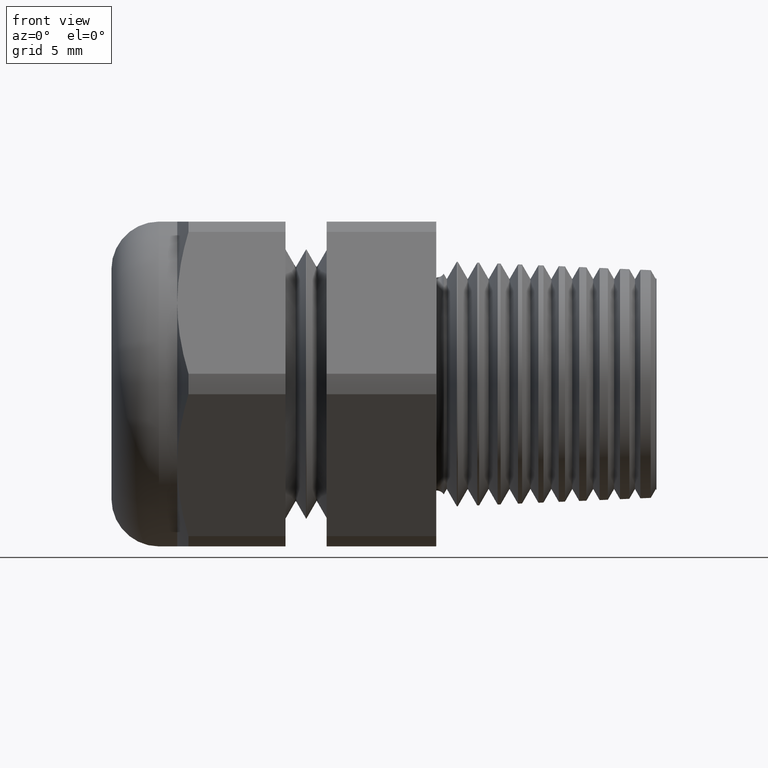
[diagram: clean part render]
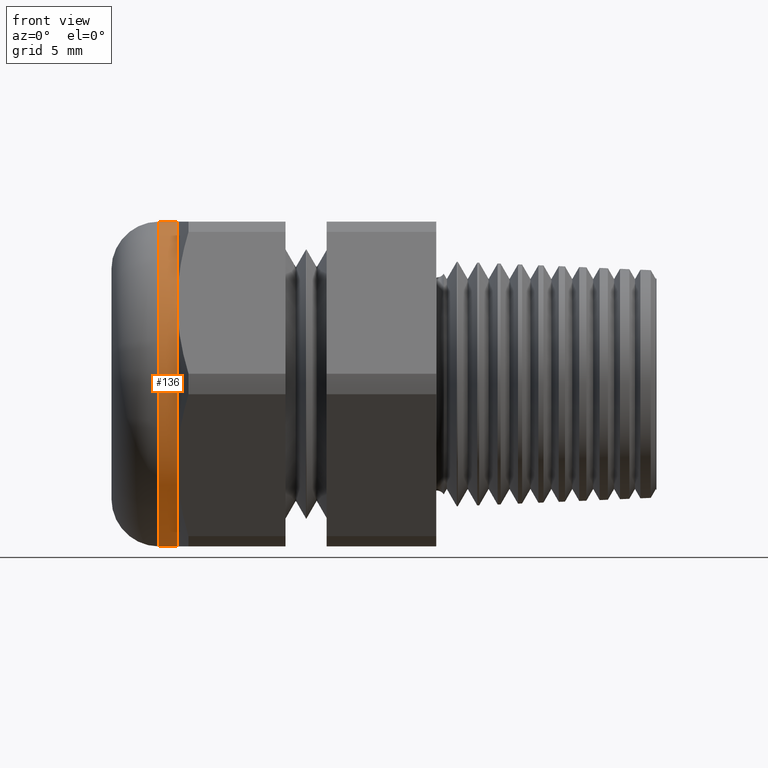
[diagram: same view with one face highlighted and labeled with its STEP entity id]
A machine part, front view. The second image highlights one B-rep face of the part: STEP entity #136.
In plain terms, the highlighted cylindrical surface (partial cylindrical patch) has radius 11.049 mm, axis along (-1, 0, 0).
Its self-contained STEP definition (entity closure, byte-faithful):
#121 = ORIENTED_EDGE ( 'NONE', *, *, #138, .T. ) ;
#135 = EDGE_LOOP ( 'NONE', ( #154, #152, #143, #121, #140, #139 ) ) ;
#136 = ADVANCED_FACE ( 'NONE', ( #1064 ), #1126, .T. ) ;
#137 = EDGE_CURVE ( 'NONE', #644, #640, #1120, .T. ) ;
#138 = EDGE_CURVE ( 'NONE', #3695, #669, #1116, .T. ) ;
#139 = ORIENTED_EDGE ( 'NONE', *, *, #137, .T. ) ;
#140 = ORIENTED_EDGE ( 'NONE', *, *, #737, .T. ) ;
#141 = EDGE_CURVE ( 'NONE', #3453, #3695, #1111, .T. ) ;
#142 = EDGE_CURVE ( 'NONE', #702, #3453, #1106, .T. ) ;
#143 = ORIENTED_EDGE ( 'NONE', *, *, #141, .T. ) ;
#152 = ORIENTED_EDGE ( 'NONE', *, *, #142, .T. ) ;
#154 = ORIENTED_EDGE ( 'NONE', *, *, #774, .F. ) ;
#640 = VERTEX_POINT ( 'NONE', #2213 ) ;
#644 = VERTEX_POINT ( 'NONE', #2207 ) ;
#669 = VERTEX_POINT ( 'NONE', #2290 ) ;
#702 = VERTEX_POINT ( 'NONE', #2321 ) ;
#737 = EDGE_CURVE ( 'NONE', #669, #644, #2348, .T. ) ;
#774 = EDGE_CURVE ( 'NONE', #702, #640, #2419, .T. ) ;
#1064 = FACE_OUTER_BOUND ( 'NONE', #135, .T. ) ;
#1102 = DIRECTION ( 'NONE',  ( 0.0000000000000000000, 0.0000000000000000000, 1.000000000000000000 ) ) ;
#1103 = DIRECTION ( 'NONE',  ( -1.000000000000000000, 0.0000000000000000000, 0.0000000000000000000 ) ) ;
#1104 = CARTESIAN_POINT ( 'NONE',  ( -0.6937499999999999800, 0.0000000000000000000, 0.0000000000000000000 ) ) ;
#1105 = AXIS2_PLACEMENT_3D ( 'NONE', #1104, #1103, #1102 ) ;
#1106 = CIRCLE ( 'NONE', #1105, 0.4349999999999998900 ) ;
#1107 = DIRECTION ( 'NONE',  ( 0.0000000000000000000, 0.0000000000000000000, 1.000000000000000000 ) ) ;
#1108 = DIRECTION ( 'NONE',  ( -1.000000000000000000, 0.0000000000000000000, 0.0000000000000000000 ) ) ;
#1109 = CARTESIAN_POINT ( 'NONE',  ( -0.6937499999999999800, 0.0000000000000000000, 0.0000000000000000000 ) ) ;
#1110 = AXIS2_PLACEMENT_3D ( 'NONE', #1109, #1108, #1107 ) ;
#1111 = CIRCLE ( 'NONE', #1110, 0.4349999999999998900 ) ;
#1112 = DIRECTION ( 'NONE',  ( 0.0000000000000000000, 0.0000000000000000000, 1.000000000000000000 ) ) ;
#1113 = DIRECTION ( 'NONE',  ( -1.000000000000000000, 0.0000000000000000000, 0.0000000000000000000 ) ) ;
#1114 = CARTESIAN_POINT ( 'NONE',  ( -0.6937499999999999800, 0.0000000000000000000, 0.0000000000000000000 ) ) ;
#1115 = AXIS2_PLACEMENT_3D ( 'NONE', #1114, #1113, #1112 ) ;
#1116 = CIRCLE ( 'NONE', #1115, 0.4349999999999998900 ) ;
#1117 = DIRECTION ( 'NONE',  ( 0.0000000000000000000, 0.0000000000000000000, -1.000000000000000000 ) ) ;
#1118 = DIRECTION ( 'NONE',  ( 1.000000000000000000, 0.0000000000000000000, 0.0000000000000000000 ) ) ;
#1119 = AXIS2_PLACEMENT_3D ( 'NONE', #1125, #1118, #1117 ) ;
#1120 = CIRCLE ( 'NONE', #1119, 0.4349999999999998900 ) ;
#1121 = DIRECTION ( 'NONE',  ( 0.0000000000000000000, 0.0000000000000000000, 1.000000000000000000 ) ) ;
#1122 = DIRECTION ( 'NONE',  ( -1.000000000000000000, 0.0000000000000000000, 0.0000000000000000000 ) ) ;
#1123 = CARTESIAN_POINT ( 'NONE',  ( -0.7238591030180623300, 0.0000000000000000000, 0.0000000000000000000 ) ) ;
#1124 = AXIS2_PLACEMENT_3D ( 'NONE', #1123, #1122, #1121 ) ;
#1125 = CARTESIAN_POINT ( 'NONE',  ( -0.7428000000000000200, 0.0000000000000000000, 0.0000000000000000000 ) ) ;
#1126 = CYLINDRICAL_SURFACE ( 'NONE', #1124, 0.4349999999999998900 ) ;
#2207 = CARTESIAN_POINT ( 'NONE',  ( -0.7428000000000000200, 0.0000000000000000000, 0.4349999999999998900 ) ) ;
#2213 = CARTESIAN_POINT ( 'NONE',  ( -0.7428000000000000200, 5.327213576290984500E-017, -0.4349999999999998900 ) ) ;
#2290 = CARTESIAN_POINT ( 'NONE',  ( -0.6937499999999999800, 0.0000000000000000000, 0.4349999999999999400 ) ) ;
#2321 = CARTESIAN_POINT ( 'NONE',  ( -0.6937499999999999800, 0.0000000000000000000, -0.4349999999999999400 ) ) ;
#2345 = DIRECTION ( 'NONE',  ( -1.000000000000000000, 0.0000000000000000000, 0.0000000000000000000 ) ) ;
#2346 = VECTOR ( 'NONE', #2345, 39.37007874015748100 ) ;
#2347 = CARTESIAN_POINT ( 'NONE',  ( -0.7238591030180623300, 0.0000000000000000000, 0.4349999999999998900 ) ) ;
#2348 = LINE ( 'NONE', #2347, #2346 ) ;
#2416 = DIRECTION ( 'NONE',  ( -1.000000000000000000, 0.0000000000000000000, 0.0000000000000000000 ) ) ;
#2417 = VECTOR ( 'NONE', #2416, 39.37007874015748100 ) ;
#2418 = CARTESIAN_POINT ( 'NONE',  ( -0.7238591030180623300, 5.327213576290984500E-017, -0.4349999999999998900 ) ) ;
#2419 = LINE ( 'NONE', #2418, #2417 ) ;
#2885 = CARTESIAN_POINT ( 'NONE',  ( -0.6937499999999999800, -0.3767210506462305700, -0.2175000000000002800 ) ) ;
#3282 = CARTESIAN_POINT ( 'NONE',  ( -0.6937499999999999800, -0.3767210506462308500, 0.2174999999999998000 ) ) ;
#3453 = VERTEX_POINT ( 'NONE', #2885 ) ;
#3695 = VERTEX_POINT ( 'NONE', #3282 ) ;